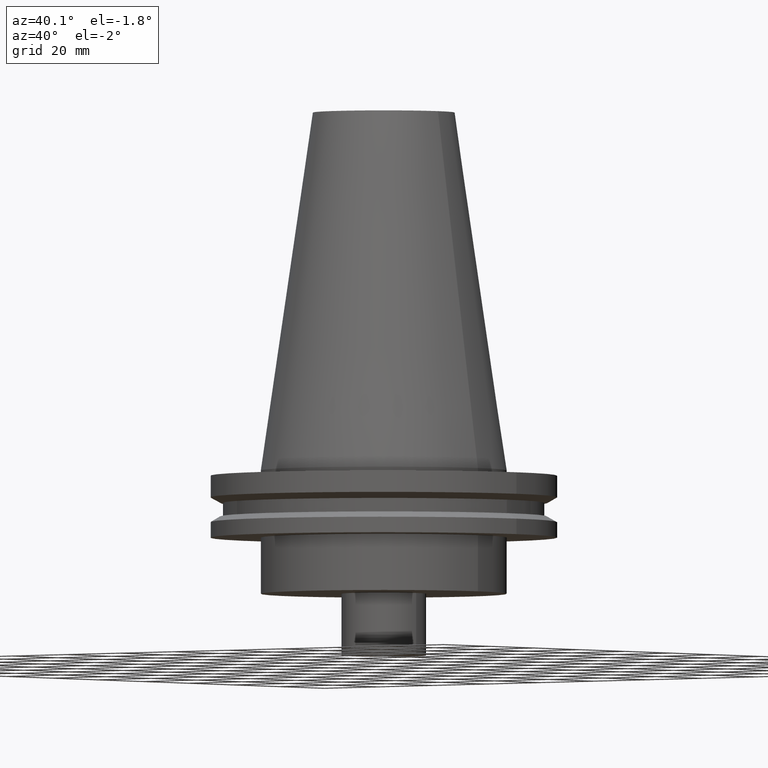
[diagram: clean part render]
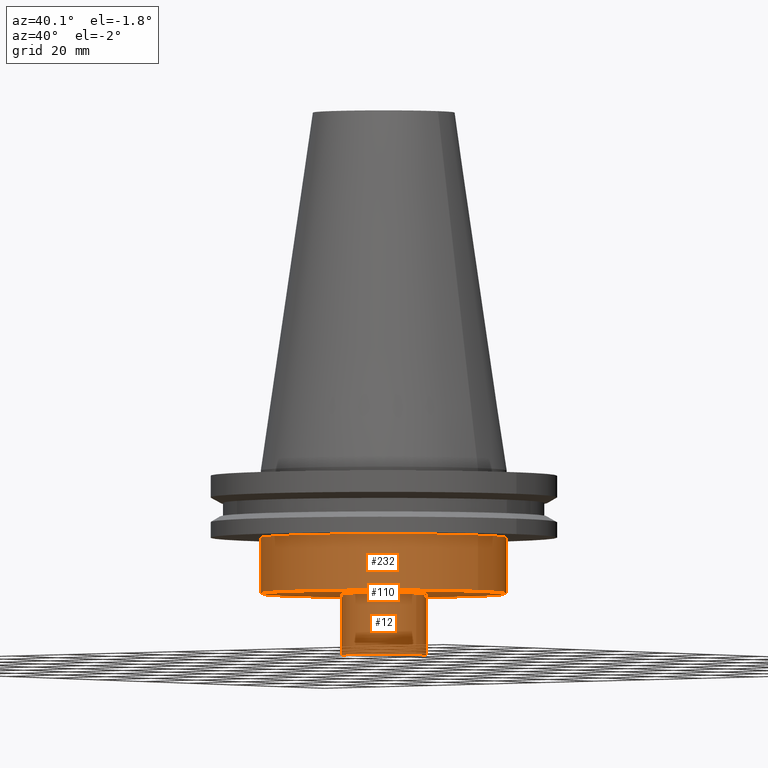
[diagram: same view with one multi-face feature highlighted, each face labeled with its STEP entity id]
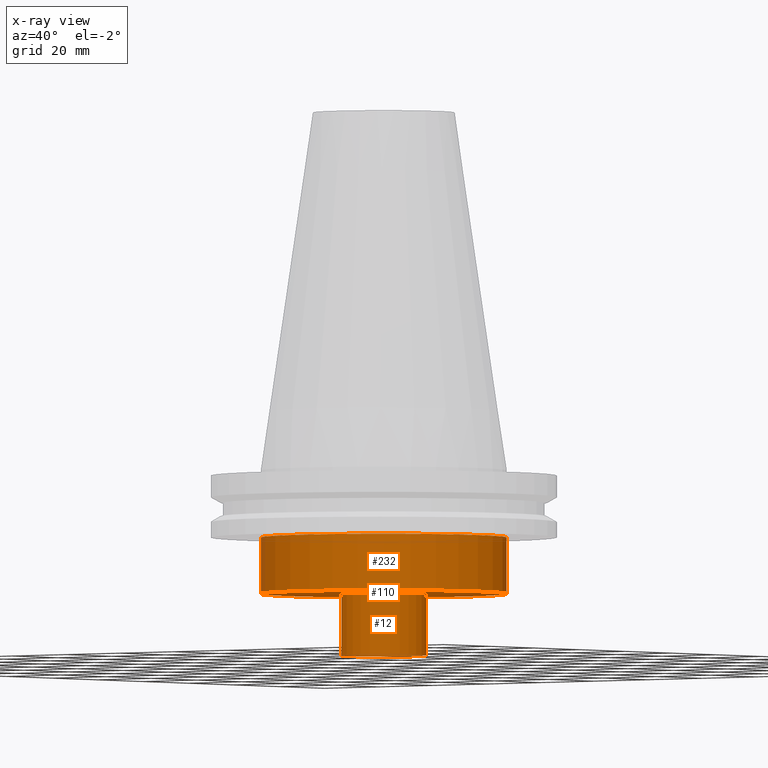
[diagram: x-ray of the same camera — body ghosted, the whole feature saturated]
A machine part, auxiliary view. The highlighted faces form ONE feature: a stepped (counterbored) hole: 2 coaxial cylindrical walls of radii 12 -> 34.925 mm joined by 1 annular planar shoulder face(s). The faces share edges in the B-rep.
The next image is the same camera in x-ray: the body ghosted and the whole hole feature saturated, so the bore chain is visible through the body.
Their STEP definitions:
[1] entity #232 (Cylinder):
#4 = EDGE_LOOP ( 'NONE', ( #270 ) ) ;
#22 = CARTESIAN_POINT ( 'NONE',  ( 34.92499999999999716, 0.000000000000000000, -35.00000000000000000 ) ) ;
#53 = ORIENTED_EDGE ( 'NONE', *, *, #124, .T. ) ;
#75 = CIRCLE ( 'NONE', #171, 34.92499999999999716 ) ;
#124 = EDGE_CURVE ( 'NONE', #174, #174, #148, .T. ) ;
#125 = DIRECTION ( 'NONE',  ( -0.000000000000000000, -0.000000000000000000, 1.000000000000000000 ) ) ;
#127 = CARTESIAN_POINT ( 'NONE',  ( 0.000000000000000000, 0.000000000000000000, -35.00000000000000000 ) ) ;
#148 = CIRCLE ( 'NONE', #246, 34.92499999999999716 ) ;
#160 = CARTESIAN_POINT ( 'NONE',  ( 0.000000000000000000, 0.000000000000000000, 101.5999999999999943 ) ) ;
#171 = AXIS2_PLACEMENT_3D ( 'NONE', #341, #344, #339 ) ;
#174 = VERTEX_POINT ( 'NONE', #22 ) ;
#190 = DIRECTION ( 'NONE',  ( -0.000000000000000000, -0.000000000000000000, 1.000000000000000000 ) ) ;
#232 = ADVANCED_FACE ( 'NONE', ( #362, #248 ), #302, .T. ) ;
#246 = AXIS2_PLACEMENT_3D ( 'NONE', #127, #190, #333 ) ;
#248 = FACE_OUTER_BOUND ( 'NONE', #385, .T. ) ;
#267 = CARTESIAN_POINT ( 'NONE',  ( 34.92499999999999716, 0.000000000000000000, -19.04999999999999716 ) ) ;
#270 = ORIENTED_EDGE ( 'NONE', *, *, #365, .F. ) ;
#279 = DIRECTION ( 'NONE',  ( 1.000000000000000000, 0.000000000000000000, 0.000000000000000000 ) ) ;
#302 = CYLINDRICAL_SURFACE ( 'NONE', #329, 34.92499999999999716 ) ;
#329 = AXIS2_PLACEMENT_3D ( 'NONE', #160, #125, #279 ) ;
#333 = DIRECTION ( 'NONE',  ( 1.000000000000000000, 0.000000000000000000, 0.000000000000000000 ) ) ;
#339 = DIRECTION ( 'NONE',  ( 1.000000000000000000, 0.000000000000000000, 0.000000000000000000 ) ) ;
#341 = CARTESIAN_POINT ( 'NONE',  ( 0.000000000000000000, 0.000000000000000000, -19.04999999999999716 ) ) ;
#344 = DIRECTION ( 'NONE',  ( -0.000000000000000000, -0.000000000000000000, 1.000000000000000000 ) ) ;
#362 = FACE_OUTER_BOUND ( 'NONE', #4, .T. ) ;
#365 = EDGE_CURVE ( 'NONE', #388, #388, #75, .T. ) ;
#385 = EDGE_LOOP ( 'NONE', ( #53 ) ) ;
#388 = VERTEX_POINT ( 'NONE', #267 ) ;
[2] entity #12 (Cylinder):
#12 = ADVANCED_FACE ( 'NONE', ( #89, #211 ), #326, .T. ) ;
#17 = DIRECTION ( 'NONE',  ( 1.000000000000000000, 0.000000000000000000, 0.000000000000000000 ) ) ;
#24 = ORIENTED_EDGE ( 'NONE', *, *, #314, .F. ) ;
#78 = VERTEX_POINT ( 'NONE', #264 ) ;
#85 = ORIENTED_EDGE ( 'NONE', *, *, #343, .T. ) ;
#89 = FACE_OUTER_BOUND ( 'NONE', #340, .T. ) ;
#115 = DIRECTION ( 'NONE',  ( -0.000000000000000000, -0.000000000000000000, 1.000000000000000000 ) ) ;
#159 = AXIS2_PLACEMENT_3D ( 'NONE', #236, #115, #17 ) ;
#164 = AXIS2_PLACEMENT_3D ( 'NONE', #259, #372, #255 ) ;
#166 = AXIS2_PLACEMENT_3D ( 'NONE', #258, #200, #199 ) ;
#199 = DIRECTION ( 'NONE',  ( 1.000000000000000000, 0.000000000000000000, 0.000000000000000000 ) ) ;
#200 = DIRECTION ( 'NONE',  ( -0.000000000000000000, -0.000000000000000000, 1.000000000000000000 ) ) ;
#211 = FACE_OUTER_BOUND ( 'NONE', #293, .T. ) ;
#217 = CIRCLE ( 'NONE', #164, 12.00000000000000000 ) ;
#236 = CARTESIAN_POINT ( 'NONE',  ( 0.000000000000000000, 0.000000000000000000, 0.000000000000000000 ) ) ;
#255 = DIRECTION ( 'NONE',  ( 1.000000000000000000, 0.000000000000000000, 0.000000000000000000 ) ) ;
#258 = CARTESIAN_POINT ( 'NONE',  ( 0.000000000000000000, 0.000000000000000000, -52.49999999999997868 ) ) ;
#259 = CARTESIAN_POINT ( 'NONE',  ( 0.000000000000000000, 0.000000000000000000, -35.00000000000000000 ) ) ;
#264 = CARTESIAN_POINT ( 'NONE',  ( 12.00000000000000000, 0.000000000000000000, -35.00000000000000000 ) ) ;
#271 = VERTEX_POINT ( 'NONE', #294 ) ;
#293 = EDGE_LOOP ( 'NONE', ( #85 ) ) ;
#294 = CARTESIAN_POINT ( 'NONE',  ( 12.00000000000000000, 0.000000000000000000, -52.49999999999997868 ) ) ;
#314 = EDGE_CURVE ( 'NONE', #78, #78, #217, .T. ) ;
#326 = CYLINDRICAL_SURFACE ( 'NONE', #159, 12.00000000000000000 ) ;
#337 = CIRCLE ( 'NONE', #166, 12.00000000000000000 ) ;
#340 = EDGE_LOOP ( 'NONE', ( #24 ) ) ;
#343 = EDGE_CURVE ( 'NONE', #271, #271, #337, .T. ) ;
#372 = DIRECTION ( 'NONE',  ( -0.000000000000000000, -0.000000000000000000, 1.000000000000000000 ) ) ;
[3] entity #110 (Plane):
#22 = CARTESIAN_POINT ( 'NONE',  ( 34.92499999999999716, 0.000000000000000000, -35.00000000000000000 ) ) ;
#78 = VERTEX_POINT ( 'NONE', #264 ) ;
#87 = ORIENTED_EDGE ( 'NONE', *, *, #124, .F. ) ;
#101 = DIRECTION ( 'NONE',  ( 1.000000000000000000, 0.000000000000000000, 0.000000000000000000 ) ) ;
#110 = ADVANCED_FACE ( 'NONE', ( #265, #215 ), #254, .F. ) ;
#124 = EDGE_CURVE ( 'NONE', #174, #174, #148, .T. ) ;
#127 = CARTESIAN_POINT ( 'NONE',  ( 0.000000000000000000, 0.000000000000000000, -35.00000000000000000 ) ) ;
#148 = CIRCLE ( 'NONE', #246, 34.92499999999999716 ) ;
#149 = EDGE_LOOP ( 'NONE', ( #87 ) ) ;
#164 = AXIS2_PLACEMENT_3D ( 'NONE', #259, #372, #255 ) ;
#174 = VERTEX_POINT ( 'NONE', #22 ) ;
#190 = DIRECTION ( 'NONE',  ( -0.000000000000000000, -0.000000000000000000, 1.000000000000000000 ) ) ;
#198 = AXIS2_PLACEMENT_3D ( 'NONE', #305, #221, #101 ) ;
#215 = FACE_OUTER_BOUND ( 'NONE', #149, .T. ) ;
#216 = ORIENTED_EDGE ( 'NONE', *, *, #314, .T. ) ;
#217 = CIRCLE ( 'NONE', #164, 12.00000000000000000 ) ;
#221 = DIRECTION ( 'NONE',  ( 0.000000000000000000, -0.000000000000000000, 1.000000000000000000 ) ) ;
#246 = AXIS2_PLACEMENT_3D ( 'NONE', #127, #190, #333 ) ;
#253 = EDGE_LOOP ( 'NONE', ( #216 ) ) ;
#254 = PLANE ( 'NONE',  #198 ) ;
#255 = DIRECTION ( 'NONE',  ( 1.000000000000000000, 0.000000000000000000, 0.000000000000000000 ) ) ;
#259 = CARTESIAN_POINT ( 'NONE',  ( 0.000000000000000000, 0.000000000000000000, -35.00000000000000000 ) ) ;
#264 = CARTESIAN_POINT ( 'NONE',  ( 12.00000000000000000, 0.000000000000000000, -35.00000000000000000 ) ) ;
#265 = FACE_BOUND ( 'NONE', #253, .T. ) ;
#305 = CARTESIAN_POINT ( 'NONE',  ( 0.000000000000000000, 34.92499999999999716, -35.00000000000000000 ) ) ;
#314 = EDGE_CURVE ( 'NONE', #78, #78, #217, .T. ) ;
#333 = DIRECTION ( 'NONE',  ( 1.000000000000000000, 0.000000000000000000, 0.000000000000000000 ) ) ;
#372 = DIRECTION ( 'NONE',  ( -0.000000000000000000, -0.000000000000000000, 1.000000000000000000 ) ) ;